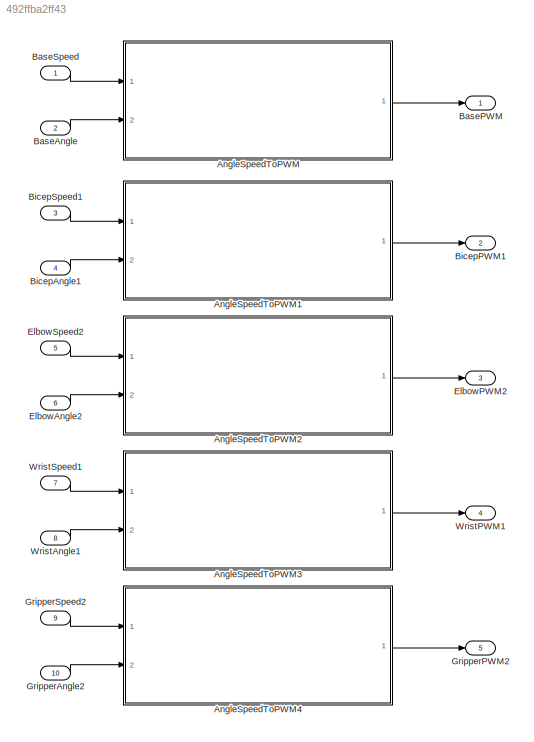
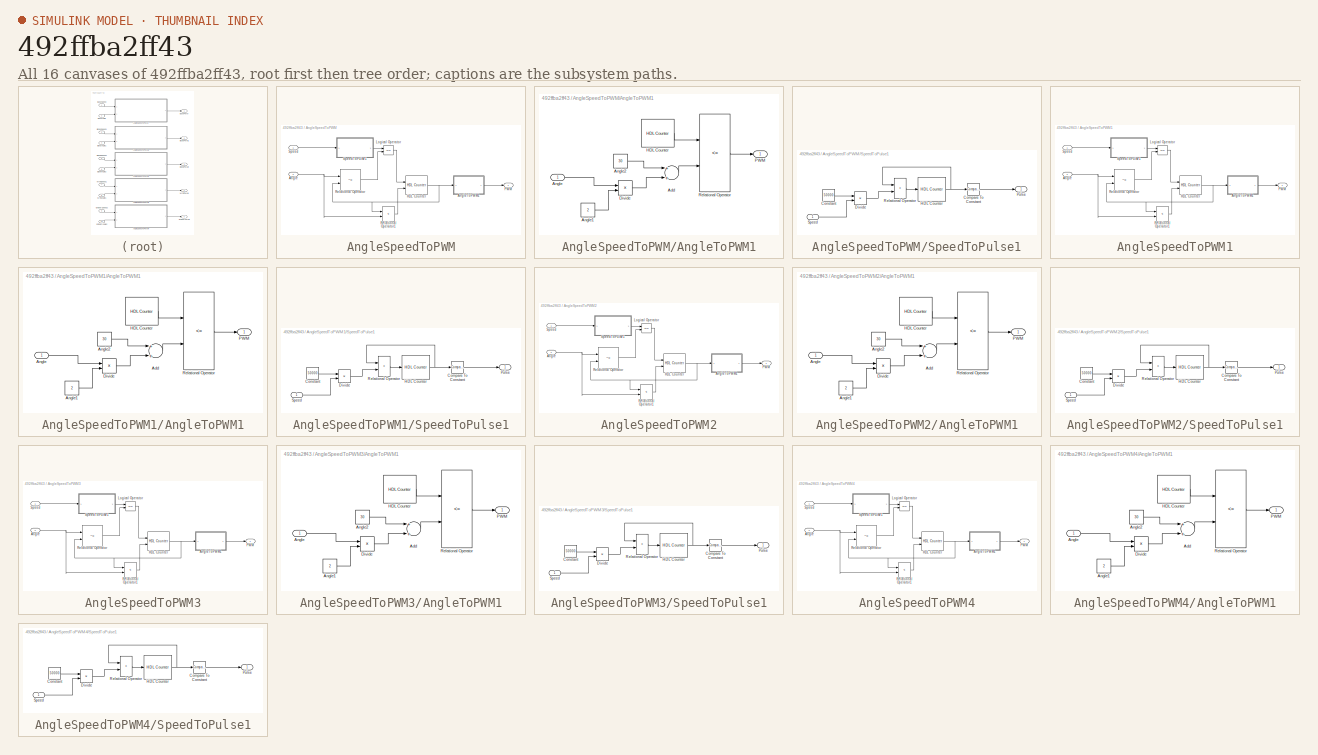
[diagram: thumbnail index - all 16 canvases of the model, root first then tree order]
MODEL slx_492ffba2ff43
KIND model
CONFIG AbsTol = auto
CONFIG EnableMultiTasking = off
CONFIG FixedStep = 1
CONFIG MaxStep = auto
CONFIG MinStep = auto
CONFIG RelTol = 1e-3
CONFIG SampleTimeConstraint = Unconstrained
CONFIG Solver = FixedStepDiscrete
CONFIG SolverName = FixedStepDiscrete
CONFIG StartTime = 0.0
CONFIG StopTime = 50000
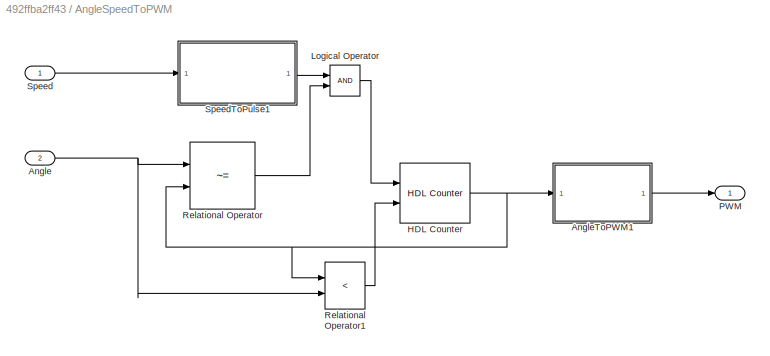
BLOCK [SubSystem] AngleSpeedToPWM
  Ports = [2, 1]
  RequestExecContextInheritance = off
  Variant = off
BLOCK [Inport] AngleSpeedToPWM/Angle
  IconDisplay = Port number
  Port = 2
BLOCK [SubSystem] AngleSpeedToPWM/AngleToPWM1
  Ports = [1, 1]
  RequestExecContextInheritance = off
  Variant = off
BLOCK [Sum] AngleSpeedToPWM/AngleToPWM1/Add
  InputSameDT = off
  OutDataTypeStr = Inherit: Inherit via internal rule
  Ports = [2, 1]
  SaturateOnIntegerOverflow = off
BLOCK [Inport] AngleSpeedToPWM/AngleToPWM1/Angle
  IconDisplay = Port number
BLOCK [Constant] AngleSpeedToPWM/AngleToPWM1/Angle1
  OutDataTypeStr = uint8
  Value = 2
BLOCK [Constant] AngleSpeedToPWM/AngleToPWM1/Angle2
  OutDataTypeStr = uint8
  Value = 30
BLOCK [Product] AngleSpeedToPWM/AngleToPWM1/Divide
  InputSameDT = off
  Inputs = */
  OutDataTypeStr = Inherit: Inherit via internal rule
  Ports = [2, 1]
  RndMeth = Floor
  SaturateOnIntegerOverflow = off
BLOCK [Reference] AngleSpeedToPWM/AngleToPWM1/HDL Counter  REF=hdlsllib/HDL Operations/HDL Counter
  Ports = [0, 1]
  SourceBlock = hdlsllib/HDL Operations/HDL Counter
  SourceProductBaseCode = HD
  SourceProductName = HDL Coder
  SourceType = HDL Counter
BLOCK [Outport] AngleSpeedToPWM/AngleToPWM1/PWM
  IconDisplay = Port number
BLOCK [RelationalOperator] AngleSpeedToPWM/AngleToPWM1/Relational Operator
  InputSameDT = off
  Operator = <=
  OutDataTypeStr = boolean
  Ports = [2, 1]
  RndMeth = Simplest
BLOCK [Reference] AngleSpeedToPWM/HDL Counter  REF=hdlsllib/HDL Operations/HDL Counter
  Ports = [2, 1]
  SourceBlock = hdlsllib/HDL Operations/HDL Counter
  SourceProductBaseCode = HD
  SourceProductName = HDL Coder
  SourceType = HDL Counter
BLOCK [Logic] AngleSpeedToPWM/Logical Operator
  AllPortsSameDT = off
  OutDataTypeStr = boolean
  Ports = [2, 1]
BLOCK [Outport] AngleSpeedToPWM/PWM
  IconDisplay = Port number
BLOCK [RelationalOperator] AngleSpeedToPWM/Relational Operator
  InputSameDT = off
  Operator = ~=
  OutDataTypeStr = boolean
  Ports = [2, 1]
  RndMeth = Simplest
BLOCK [RelationalOperator] AngleSpeedToPWM/Relational Operator1
  InputSameDT = off
  Operator = <
  OutDataTypeStr = boolean
  Ports = [2, 1]
  RndMeth = Simplest
BLOCK [Inport] AngleSpeedToPWM/Speed
  IconDisplay = Port number
BLOCK [SubSystem] AngleSpeedToPWM/SpeedToPulse1
  Ports = [1, 1]
  RequestExecContextInheritance = off
  Variant = off
BLOCK [Reference] AngleSpeedToPWM/SpeedToPulse1/Compare To Constant  REF=simulink/Logic and Bit
Operations/Compare
To Constant
  Ports = [1, 1]
  SourceBlock = simulink/Logic and Bit\nOperations/Compare\nTo Constant
  SourceProductBaseCode = SL
  SourceProductName = Simulink
  SourceType = Compare To Constant
BLOCK [Constant] AngleSpeedToPWM/SpeedToPulse1/Constant
  Value = 50000
BLOCK [Product] AngleSpeedToPWM/SpeedToPulse1/Divide
  InputSameDT = off
  Inputs = */
  OutDataTypeStr = Inherit: Inherit via internal rule
  Ports = [2, 1]
BLOCK [Reference] AngleSpeedToPWM/SpeedToPulse1/HDL Counter  REF=hdlsllib/HDL Operations/HDL Counter
  Ports = [1, 1]
  SourceBlock = hdlsllib/HDL Operations/HDL Counter
  SourceProductBaseCode = HD
  SourceProductName = HDL Coder
  SourceType = HDL Counter
BLOCK [Outport] AngleSpeedToPWM/SpeedToPulse1/Pulse
  IconDisplay = Port number
BLOCK [RelationalOperator] AngleSpeedToPWM/SpeedToPulse1/Relational Operator
  InputSameDT = off
  Operator = >
  OutDataTypeStr = boolean
  Ports = [2, 1]
BLOCK [Inport] AngleSpeedToPWM/SpeedToPulse1/Speed
  IconDisplay = Port number
  OutDataTypeStr = uint8
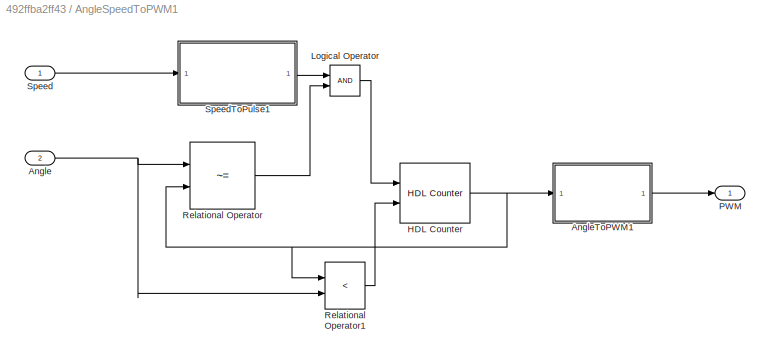
BLOCK [SubSystem] AngleSpeedToPWM1
  Ports = [2, 1]
  RequestExecContextInheritance = off
  Variant = off
BLOCK [Inport] AngleSpeedToPWM1/Angle
  IconDisplay = Port number
  Port = 2
BLOCK [SubSystem] AngleSpeedToPWM1/AngleToPWM1
  Ports = [1, 1]
  RequestExecContextInheritance = off
  Variant = off
BLOCK [Sum] AngleSpeedToPWM1/AngleToPWM1/Add
  InputSameDT = off
  OutDataTypeStr = Inherit: Inherit via internal rule
  Ports = [2, 1]
  SaturateOnIntegerOverflow = off
BLOCK [Inport] AngleSpeedToPWM1/AngleToPWM1/Angle
  IconDisplay = Port number
BLOCK [Constant] AngleSpeedToPWM1/AngleToPWM1/Angle1
  OutDataTypeStr = uint8
  Value = 2
BLOCK [Constant] AngleSpeedToPWM1/AngleToPWM1/Angle2
  OutDataTypeStr = uint8
  Value = 30
BLOCK [Product] AngleSpeedToPWM1/AngleToPWM1/Divide
  InputSameDT = off
  Inputs = */
  OutDataTypeStr = Inherit: Inherit via internal rule
  Ports = [2, 1]
  RndMeth = Floor
  SaturateOnIntegerOverflow = off
BLOCK [Reference] AngleSpeedToPWM1/AngleToPWM1/HDL Counter  REF=hdlsllib/HDL Operations/HDL Counter
  Ports = [0, 1]
  SourceBlock = hdlsllib/HDL Operations/HDL Counter
  SourceProductBaseCode = HD
  SourceProductName = HDL Coder
  SourceType = HDL Counter
BLOCK [Outport] AngleSpeedToPWM1/AngleToPWM1/PWM
  IconDisplay = Port number
BLOCK [RelationalOperator] AngleSpeedToPWM1/AngleToPWM1/Relational Operator
  InputSameDT = off
  Operator = <=
  OutDataTypeStr = boolean
  Ports = [2, 1]
  RndMeth = Simplest
BLOCK [Reference] AngleSpeedToPWM1/HDL Counter  REF=hdlsllib/HDL Operations/HDL Counter
  Ports = [2, 1]
  SourceBlock = hdlsllib/HDL Operations/HDL Counter
  SourceProductBaseCode = HD
  SourceProductName = HDL Coder
  SourceType = HDL Counter
BLOCK [Logic] AngleSpeedToPWM1/Logical Operator
  AllPortsSameDT = off
  OutDataTypeStr = boolean
  Ports = [2, 1]
BLOCK [Outport] AngleSpeedToPWM1/PWM
  IconDisplay = Port number
BLOCK [RelationalOperator] AngleSpeedToPWM1/Relational Operator
  InputSameDT = off
  Operator = ~=
  OutDataTypeStr = boolean
  Ports = [2, 1]
  RndMeth = Simplest
BLOCK [RelationalOperator] AngleSpeedToPWM1/Relational Operator1
  InputSameDT = off
  Operator = <
  OutDataTypeStr = boolean
  Ports = [2, 1]
  RndMeth = Simplest
BLOCK [Inport] AngleSpeedToPWM1/Speed
  IconDisplay = Port number
BLOCK [SubSystem] AngleSpeedToPWM1/SpeedToPulse1
  Ports = [1, 1]
  RequestExecContextInheritance = off
  Variant = off
BLOCK [Reference] AngleSpeedToPWM1/SpeedToPulse1/Compare To Constant  REF=simulink/Logic and Bit
Operations/Compare
To Constant
  Ports = [1, 1]
  SourceBlock = simulink/Logic and Bit\nOperations/Compare\nTo Constant
  SourceProductBaseCode = SL
  SourceProductName = Simulink
  SourceType = Compare To Constant
BLOCK [Constant] AngleSpeedToPWM1/SpeedToPulse1/Constant
  Value = 50000
BLOCK [Product] AngleSpeedToPWM1/SpeedToPulse1/Divide
  InputSameDT = off
  Inputs = */
  OutDataTypeStr = Inherit: Inherit via internal rule
  Ports = [2, 1]
BLOCK [Reference] AngleSpeedToPWM1/SpeedToPulse1/HDL Counter  REF=hdlsllib/HDL Operations/HDL Counter
  Ports = [1, 1]
  SourceBlock = hdlsllib/HDL Operations/HDL Counter
  SourceProductBaseCode = HD
  SourceProductName = HDL Coder
  SourceType = HDL Counter
BLOCK [Outport] AngleSpeedToPWM1/SpeedToPulse1/Pulse
  IconDisplay = Port number
BLOCK [RelationalOperator] AngleSpeedToPWM1/SpeedToPulse1/Relational Operator
  InputSameDT = off
  Operator = >
  OutDataTypeStr = boolean
  Ports = [2, 1]
BLOCK [Inport] AngleSpeedToPWM1/SpeedToPulse1/Speed
  IconDisplay = Port number
  OutDataTypeStr = uint8
BLOCK [SubSystem] AngleSpeedToPWM2
  Ports = [2, 1]
  RequestExecContextInheritance = off
  Variant = off
BLOCK [Inport] AngleSpeedToPWM2/Angle
  IconDisplay = Port number
  Port = 2
BLOCK [SubSystem] AngleSpeedToPWM2/AngleToPWM1
  Ports = [1, 1]
  RequestExecContextInheritance = off
  Variant = off
BLOCK [Sum] AngleSpeedToPWM2/AngleToPWM1/Add
  InputSameDT = off
  OutDataTypeStr = Inherit: Inherit via internal rule
  Ports = [2, 1]
  SaturateOnIntegerOverflow = off
BLOCK [Inport] AngleSpeedToPWM2/AngleToPWM1/Angle
  IconDisplay = Port number
BLOCK [Constant] AngleSpeedToPWM2/AngleToPWM1/Angle1
  OutDataTypeStr = uint8
  Value = 2
BLOCK [Constant] AngleSpeedToPWM2/AngleToPWM1/Angle2
  OutDataTypeStr = uint8
  Value = 30
BLOCK [Product] AngleSpeedToPWM2/AngleToPWM1/Divide
  InputSameDT = off
  Inputs = */
  OutDataTypeStr = Inherit: Inherit via internal rule
  Ports = [2, 1]
  RndMeth = Floor
  SaturateOnIntegerOverflow = off
BLOCK [Reference] AngleSpeedToPWM2/AngleToPWM1/HDL Counter  REF=hdlsllib/HDL Operations/HDL Counter
  Ports = [0, 1]
  SourceBlock = hdlsllib/HDL Operations/HDL Counter
  SourceProductBaseCode = HD
  SourceProductName = HDL Coder
  SourceType = HDL Counter
BLOCK [Outport] AngleSpeedToPWM2/AngleToPWM1/PWM
  IconDisplay = Port number
BLOCK [RelationalOperator] AngleSpeedToPWM2/AngleToPWM1/Relational Operator
  InputSameDT = off
  Operator = <=
  OutDataTypeStr = boolean
  Ports = [2, 1]
  RndMeth = Simplest
BLOCK [Reference] AngleSpeedToPWM2/HDL Counter  REF=hdlsllib/HDL Operations/HDL Counter
  Ports = [2, 1]
  SourceBlock = hdlsllib/HDL Operations/HDL Counter
  SourceProductBaseCode = HD
  SourceProductName = HDL Coder
  SourceType = HDL Counter
BLOCK [Logic] AngleSpeedToPWM2/Logical Operator
  AllPortsSameDT = off
  OutDataTypeStr = boolean
  Ports = [2, 1]
BLOCK [Outport] AngleSpeedToPWM2/PWM
  IconDisplay = Port number
BLOCK [RelationalOperator] AngleSpeedToPWM2/Relational Operator
  InputSameDT = off
  Operator = ~=
  OutDataTypeStr = boolean
  Ports = [2, 1]
  RndMeth = Simplest
BLOCK [RelationalOperator] AngleSpeedToPWM2/Relational Operator1
  InputSameDT = off
  Operator = <
  OutDataTypeStr = boolean
  Ports = [2, 1]
  RndMeth = Simplest
BLOCK [Inport] AngleSpeedToPWM2/Speed
  IconDisplay = Port number
BLOCK [SubSystem] AngleSpeedToPWM2/SpeedToPulse1
  Ports = [1, 1]
  RequestExecContextInheritance = off
  Variant = off
BLOCK [Reference] AngleSpeedToPWM2/SpeedToPulse1/Compare To Constant  REF=simulink/Logic and Bit
Operations/Compare
To Constant
  Ports = [1, 1]
  SourceBlock = simulink/Logic and Bit\nOperations/Compare\nTo Constant
  SourceProductBaseCode = SL
  SourceProductName = Simulink
  SourceType = Compare To Constant
BLOCK [Constant] AngleSpeedToPWM2/SpeedToPulse1/Constant
  Value = 50000
BLOCK [Product] AngleSpeedToPWM2/SpeedToPulse1/Divide
  InputSameDT = off
  Inputs = */
  OutDataTypeStr = Inherit: Inherit via internal rule
  Ports = [2, 1]
BLOCK [Reference] AngleSpeedToPWM2/SpeedToPulse1/HDL Counter  REF=hdlsllib/HDL Operations/HDL Counter
  Ports = [1, 1]
  SourceBlock = hdlsllib/HDL Operations/HDL Counter
  SourceProductBaseCode = HD
  SourceProductName = HDL Coder
  SourceType = HDL Counter
BLOCK [Outport] AngleSpeedToPWM2/SpeedToPulse1/Pulse
  IconDisplay = Port number
BLOCK [RelationalOperator] AngleSpeedToPWM2/SpeedToPulse1/Relational Operator
  InputSameDT = off
  Operator = >
  OutDataTypeStr = boolean
  Ports = [2, 1]
BLOCK [Inport] AngleSpeedToPWM2/SpeedToPulse1/Speed
  IconDisplay = Port number
  OutDataTypeStr = uint8
BLOCK [SubSystem] AngleSpeedToPWM3
  Ports = [2, 1]
  RequestExecContextInheritance = off
  Variant = off
BLOCK [Inport] AngleSpeedToPWM3/Angle
  IconDisplay = Port number
  Port = 2
BLOCK [SubSystem] AngleSpeedToPWM3/AngleToPWM1
  Ports = [1, 1]
  RequestExecContextInheritance = off
  Variant = off
BLOCK [Sum] AngleSpeedToPWM3/AngleToPWM1/Add
  InputSameDT = off
  OutDataTypeStr = Inherit: Inherit via internal rule
  Ports = [2, 1]
  SaturateOnIntegerOverflow = off
BLOCK [Inport] AngleSpeedToPWM3/AngleToPWM1/Angle
  IconDisplay = Port number
BLOCK [Constant] AngleSpeedToPWM3/AngleToPWM1/Angle1
  OutDataTypeStr = uint8
  Value = 2
BLOCK [Constant] AngleSpeedToPWM3/AngleToPWM1/Angle2
  OutDataTypeStr = uint8
  Value = 30
BLOCK [Product] AngleSpeedToPWM3/AngleToPWM1/Divide
  InputSameDT = off
  Inputs = */
  OutDataTypeStr = Inherit: Inherit via internal rule
  Ports = [2, 1]
  RndMeth = Floor
  SaturateOnIntegerOverflow = off
BLOCK [Reference] AngleSpeedToPWM3/AngleToPWM1/HDL Counter  REF=hdlsllib/HDL Operations/HDL Counter
  Ports = [0, 1]
  SourceBlock = hdlsllib/HDL Operations/HDL Counter
  SourceProductBaseCode = HD
  SourceProductName = HDL Coder
  SourceType = HDL Counter
BLOCK [Outport] AngleSpeedToPWM3/AngleToPWM1/PWM
  IconDisplay = Port number
BLOCK [RelationalOperator] AngleSpeedToPWM3/AngleToPWM1/Relational Operator
  InputSameDT = off
  Operator = <=
  OutDataTypeStr = boolean
  Ports = [2, 1]
  RndMeth = Simplest
BLOCK [Reference] AngleSpeedToPWM3/HDL Counter  REF=hdlsllib/HDL Operations/HDL Counter
  Ports = [2, 1]
  SourceBlock = hdlsllib/HDL Operations/HDL Counter
  SourceProductBaseCode = HD
  SourceProductName = HDL Coder
  SourceType = HDL Counter
BLOCK [Logic] AngleSpeedToPWM3/Logical Operator
  AllPortsSameDT = off
  OutDataTypeStr = boolean
  Ports = [2, 1]
BLOCK [Outport] AngleSpeedToPWM3/PWM
  IconDisplay = Port number
BLOCK [RelationalOperator] AngleSpeedToPWM3/Relational Operator
  InputSameDT = off
  Operator = ~=
  OutDataTypeStr = boolean
  Ports = [2, 1]
  RndMeth = Simplest
BLOCK [RelationalOperator] AngleSpeedToPWM3/Relational Operator1
  InputSameDT = off
  Operator = <
  OutDataTypeStr = boolean
  Ports = [2, 1]
  RndMeth = Simplest
BLOCK [Inport] AngleSpeedToPWM3/Speed
  IconDisplay = Port number
BLOCK [SubSystem] AngleSpeedToPWM3/SpeedToPulse1
  Ports = [1, 1]
  RequestExecContextInheritance = off
  Variant = off
BLOCK [Reference] AngleSpeedToPWM3/SpeedToPulse1/Compare To Constant  REF=simulink/Logic and Bit
Operations/Compare
To Constant
  Ports = [1, 1]
  SourceBlock = simulink/Logic and Bit\nOperations/Compare\nTo Constant
  SourceProductBaseCode = SL
  SourceProductName = Simulink
  SourceType = Compare To Constant
BLOCK [Constant] AngleSpeedToPWM3/SpeedToPulse1/Constant
  Value = 50000
BLOCK [Product] AngleSpeedToPWM3/SpeedToPulse1/Divide
  InputSameDT = off
  Inputs = */
  OutDataTypeStr = Inherit: Inherit via internal rule
  Ports = [2, 1]
BLOCK [Reference] AngleSpeedToPWM3/SpeedToPulse1/HDL Counter  REF=hdlsllib/HDL Operations/HDL Counter
  Ports = [1, 1]
  SourceBlock = hdlsllib/HDL Operations/HDL Counter
  SourceProductBaseCode = HD
  SourceProductName = HDL Coder
  SourceType = HDL Counter
BLOCK [Outport] AngleSpeedToPWM3/SpeedToPulse1/Pulse
  IconDisplay = Port number
BLOCK [RelationalOperator] AngleSpeedToPWM3/SpeedToPulse1/Relational Operator
  InputSameDT = off
  Operator = >
  OutDataTypeStr = boolean
  Ports = [2, 1]
BLOCK [Inport] AngleSpeedToPWM3/SpeedToPulse1/Speed
  IconDisplay = Port number
  OutDataTypeStr = uint8
BLOCK [SubSystem] AngleSpeedToPWM4
  Ports = [2, 1]
  RequestExecContextInheritance = off
  Variant = off
BLOCK [Inport] AngleSpeedToPWM4/Angle
  IconDisplay = Port number
  Port = 2
BLOCK [SubSystem] AngleSpeedToPWM4/AngleToPWM1
  Ports = [1, 1]
  RequestExecContextInheritance = off
  Variant = off
BLOCK [Sum] AngleSpeedToPWM4/AngleToPWM1/Add
  InputSameDT = off
  OutDataTypeStr = Inherit: Inherit via internal rule
  Ports = [2, 1]
  SaturateOnIntegerOverflow = off
BLOCK [Inport] AngleSpeedToPWM4/AngleToPWM1/Angle
  IconDisplay = Port number
BLOCK [Constant] AngleSpeedToPWM4/AngleToPWM1/Angle1
  OutDataTypeStr = uint8
  Value = 2
BLOCK [Constant] AngleSpeedToPWM4/AngleToPWM1/Angle2
  OutDataTypeStr = uint8
  Value = 30
BLOCK [Product] AngleSpeedToPWM4/AngleToPWM1/Divide
  InputSameDT = off
  Inputs = */
  OutDataTypeStr = Inherit: Inherit via internal rule
  Ports = [2, 1]
  RndMeth = Floor
  SaturateOnIntegerOverflow = off
BLOCK [Reference] AngleSpeedToPWM4/AngleToPWM1/HDL Counter  REF=hdlsllib/HDL Operations/HDL Counter
  Ports = [0, 1]
  SourceBlock = hdlsllib/HDL Operations/HDL Counter
  SourceProductBaseCode = HD
  SourceProductName = HDL Coder
  SourceType = HDL Counter
BLOCK [Outport] AngleSpeedToPWM4/AngleToPWM1/PWM
  IconDisplay = Port number
BLOCK [RelationalOperator] AngleSpeedToPWM4/AngleToPWM1/Relational Operator
  InputSameDT = off
  Operator = <=
  OutDataTypeStr = boolean
  Ports = [2, 1]
  RndMeth = Simplest
BLOCK [Reference] AngleSpeedToPWM4/HDL Counter  REF=hdlsllib/HDL Operations/HDL Counter
  Ports = [2, 1]
  SourceBlock = hdlsllib/HDL Operations/HDL Counter
  SourceProductBaseCode = HD
  SourceProductName = HDL Coder
  SourceType = HDL Counter
BLOCK [Logic] AngleSpeedToPWM4/Logical Operator
  AllPortsSameDT = off
  OutDataTypeStr = boolean
  Ports = [2, 1]
BLOCK [Outport] AngleSpeedToPWM4/PWM
  IconDisplay = Port number
BLOCK [RelationalOperator] AngleSpeedToPWM4/Relational Operator
  InputSameDT = off
  Operator = ~=
  OutDataTypeStr = boolean
  Ports = [2, 1]
  RndMeth = Simplest
BLOCK [RelationalOperator] AngleSpeedToPWM4/Relational Operator1
  InputSameDT = off
  Operator = <
  OutDataTypeStr = boolean
  Ports = [2, 1]
  RndMeth = Simplest
BLOCK [Inport] AngleSpeedToPWM4/Speed
  IconDisplay = Port number
BLOCK [SubSystem] AngleSpeedToPWM4/SpeedToPulse1
  Ports = [1, 1]
  RequestExecContextInheritance = off
  Variant = off
BLOCK [Reference] AngleSpeedToPWM4/SpeedToPulse1/Compare To Constant  REF=simulink/Logic and Bit
Operations/Compare
To Constant
  Ports = [1, 1]
  SourceBlock = simulink/Logic and Bit\nOperations/Compare\nTo Constant
  SourceProductBaseCode = SL
  SourceProductName = Simulink
  SourceType = Compare To Constant
BLOCK [Constant] AngleSpeedToPWM4/SpeedToPulse1/Constant
  Value = 50000
BLOCK [Product] AngleSpeedToPWM4/SpeedToPulse1/Divide
  InputSameDT = off
  Inputs = */
  OutDataTypeStr = Inherit: Inherit via internal rule
  Ports = [2, 1]
BLOCK [Reference] AngleSpeedToPWM4/SpeedToPulse1/HDL Counter  REF=hdlsllib/HDL Operations/HDL Counter
  Ports = [1, 1]
  SourceBlock = hdlsllib/HDL Operations/HDL Counter
  SourceProductBaseCode = HD
  SourceProductName = HDL Coder
  SourceType = HDL Counter
BLOCK [Outport] AngleSpeedToPWM4/SpeedToPulse1/Pulse
  IconDisplay = Port number
BLOCK [RelationalOperator] AngleSpeedToPWM4/SpeedToPulse1/Relational Operator
  InputSameDT = off
  Operator = >
  OutDataTypeStr = boolean
  Ports = [2, 1]
BLOCK [Inport] AngleSpeedToPWM4/SpeedToPulse1/Speed
  IconDisplay = Port number
  OutDataTypeStr = uint8
BLOCK [Inport] BaseAngle
  IconDisplay = Port number
  Port = 2
BLOCK [Outport] BasePWM
  IconDisplay = Port number
BLOCK [Inport] BaseSpeed
  IconDisplay = Port number
BLOCK [Inport] BicepAngle1
  IconDisplay = Port number
  Port = 4
BLOCK [Outport] BicepPWM1
  IconDisplay = Port number
  Port = 2
BLOCK [Inport] BicepSpeed1
  IconDisplay = Port number
  Port = 3
BLOCK [Inport] ElbowAngle2
  IconDisplay = Port number
  Port = 6
BLOCK [Outport] ElbowPWM2
  IconDisplay = Port number
  Port = 3
BLOCK [Inport] ElbowSpeed2
  IconDisplay = Port number
  Port = 5
BLOCK [Inport] GripperAngle2
  IconDisplay = Port number
  Port = 10
BLOCK [Outport] GripperPWM2
  IconDisplay = Port number
  Port = 5
BLOCK [Inport] GripperSpeed2
  IconDisplay = Port number
  Port = 9
BLOCK [Inport] WristAngle1
  IconDisplay = Port number
  Port = 8
BLOCK [Outport] WristPWM1
  IconDisplay = Port number
  Port = 4
BLOCK [Inport] WristSpeed1
  IconDisplay = Port number
  Port = 7
NET AngleSpeedToPWM/Angle:1 -> AngleSpeedToPWM/Relational Operator1:2, AngleSpeedToPWM/Relational Operator:1
LINE AngleSpeedToPWM/AngleToPWM1/Add:1 -> AngleSpeedToPWM/AngleToPWM1/Relational Operator:2
LINE AngleSpeedToPWM/AngleToPWM1/Angle1:1 -> AngleSpeedToPWM/AngleToPWM1/Divide:2
LINE AngleSpeedToPWM/AngleToPWM1/Angle2:1 -> AngleSpeedToPWM/AngleToPWM1/Add:1
LINE AngleSpeedToPWM/AngleToPWM1/Angle:1 -> AngleSpeedToPWM/AngleToPWM1/Divide:1
LINE AngleSpeedToPWM/AngleToPWM1/Divide:1 -> AngleSpeedToPWM/AngleToPWM1/Add:2
LINE AngleSpeedToPWM/AngleToPWM1/HDL Counter:1 -> AngleSpeedToPWM/AngleToPWM1/Relational Operator:1
LINE AngleSpeedToPWM/AngleToPWM1/Relational Operator:1 -> AngleSpeedToPWM/AngleToPWM1/PWM:1
LINE AngleSpeedToPWM/AngleToPWM1:1 -> AngleSpeedToPWM/PWM:1
NET AngleSpeedToPWM/HDL Counter:1 -> AngleSpeedToPWM/AngleToPWM1:1, AngleSpeedToPWM/Relational Operator1:1, AngleSpeedToPWM/Relational Operator:2
LINE AngleSpeedToPWM/Logical Operator:1 -> AngleSpeedToPWM/HDL Counter:1
LINE AngleSpeedToPWM/Relational Operator1:1 -> AngleSpeedToPWM/HDL Counter:2
LINE AngleSpeedToPWM/Relational Operator:1 -> AngleSpeedToPWM/Logical Operator:2
LINE AngleSpeedToPWM/Speed:1 -> AngleSpeedToPWM/SpeedToPulse1:1
LINE AngleSpeedToPWM/SpeedToPulse1/Compare To Constant:1 -> AngleSpeedToPWM/SpeedToPulse1/Pulse:1
LINE AngleSpeedToPWM/SpeedToPulse1/Constant:1 -> AngleSpeedToPWM/SpeedToPulse1/Divide:1
LINE AngleSpeedToPWM/SpeedToPulse1/Divide:1 -> AngleSpeedToPWM/SpeedToPulse1/Relational Operator:2
NET AngleSpeedToPWM/SpeedToPulse1/HDL Counter:1 -> AngleSpeedToPWM/SpeedToPulse1/Compare To Constant:1, AngleSpeedToPWM/SpeedToPulse1/Relational Operator:1
LINE AngleSpeedToPWM/SpeedToPulse1/Relational Operator:1 -> AngleSpeedToPWM/SpeedToPulse1/HDL Counter:1
LINE AngleSpeedToPWM/SpeedToPulse1/Speed:1 -> AngleSpeedToPWM/SpeedToPulse1/Divide:2
LINE AngleSpeedToPWM/SpeedToPulse1:1 -> AngleSpeedToPWM/Logical Operator:1
NET AngleSpeedToPWM1/Angle:1 -> AngleSpeedToPWM1/Relational Operator1:2, AngleSpeedToPWM1/Relational Operator:1
LINE AngleSpeedToPWM1/AngleToPWM1/Add:1 -> AngleSpeedToPWM1/AngleToPWM1/Relational Operator:2
LINE AngleSpeedToPWM1/AngleToPWM1/Angle1:1 -> AngleSpeedToPWM1/AngleToPWM1/Divide:2
LINE AngleSpeedToPWM1/AngleToPWM1/Angle2:1 -> AngleSpeedToPWM1/AngleToPWM1/Add:1
LINE AngleSpeedToPWM1/AngleToPWM1/Angle:1 -> AngleSpeedToPWM1/AngleToPWM1/Divide:1
LINE AngleSpeedToPWM1/AngleToPWM1/Divide:1 -> AngleSpeedToPWM1/AngleToPWM1/Add:2
LINE AngleSpeedToPWM1/AngleToPWM1/HDL Counter:1 -> AngleSpeedToPWM1/AngleToPWM1/Relational Operator:1
LINE AngleSpeedToPWM1/AngleToPWM1/Relational Operator:1 -> AngleSpeedToPWM1/AngleToPWM1/PWM:1
LINE AngleSpeedToPWM1/AngleToPWM1:1 -> AngleSpeedToPWM1/PWM:1
NET AngleSpeedToPWM1/HDL Counter:1 -> AngleSpeedToPWM1/AngleToPWM1:1, AngleSpeedToPWM1/Relational Operator1:1, AngleSpeedToPWM1/Relational Operator:2
LINE AngleSpeedToPWM1/Logical Operator:1 -> AngleSpeedToPWM1/HDL Counter:1
LINE AngleSpeedToPWM1/Relational Operator1:1 -> AngleSpeedToPWM1/HDL Counter:2
LINE AngleSpeedToPWM1/Relational Operator:1 -> AngleSpeedToPWM1/Logical Operator:2
LINE AngleSpeedToPWM1/Speed:1 -> AngleSpeedToPWM1/SpeedToPulse1:1
LINE AngleSpeedToPWM1/SpeedToPulse1/Compare To Constant:1 -> AngleSpeedToPWM1/SpeedToPulse1/Pulse:1
LINE AngleSpeedToPWM1/SpeedToPulse1/Constant:1 -> AngleSpeedToPWM1/SpeedToPulse1/Divide:1
LINE AngleSpeedToPWM1/SpeedToPulse1/Divide:1 -> AngleSpeedToPWM1/SpeedToPulse1/Relational Operator:2
NET AngleSpeedToPWM1/SpeedToPulse1/HDL Counter:1 -> AngleSpeedToPWM1/SpeedToPulse1/Compare To Constant:1, AngleSpeedToPWM1/SpeedToPulse1/Relational Operator:1
LINE AngleSpeedToPWM1/SpeedToPulse1/Relational Operator:1 -> AngleSpeedToPWM1/SpeedToPulse1/HDL Counter:1
LINE AngleSpeedToPWM1/SpeedToPulse1/Speed:1 -> AngleSpeedToPWM1/SpeedToPulse1/Divide:2
LINE AngleSpeedToPWM1/SpeedToPulse1:1 -> AngleSpeedToPWM1/Logical Operator:1
LINE AngleSpeedToPWM1:1 -> BicepPWM1:1
NET AngleSpeedToPWM2/Angle:1 -> AngleSpeedToPWM2/Relational Operator1:2, AngleSpeedToPWM2/Relational Operator:1
LINE AngleSpeedToPWM2/AngleToPWM1/Add:1 -> AngleSpeedToPWM2/AngleToPWM1/Relational Operator:2
LINE AngleSpeedToPWM2/AngleToPWM1/Angle1:1 -> AngleSpeedToPWM2/AngleToPWM1/Divide:2
LINE AngleSpeedToPWM2/AngleToPWM1/Angle2:1 -> AngleSpeedToPWM2/AngleToPWM1/Add:1
LINE AngleSpeedToPWM2/AngleToPWM1/Angle:1 -> AngleSpeedToPWM2/AngleToPWM1/Divide:1
LINE AngleSpeedToPWM2/AngleToPWM1/Divide:1 -> AngleSpeedToPWM2/AngleToPWM1/Add:2
LINE AngleSpeedToPWM2/AngleToPWM1/HDL Counter:1 -> AngleSpeedToPWM2/AngleToPWM1/Relational Operator:1
LINE AngleSpeedToPWM2/AngleToPWM1/Relational Operator:1 -> AngleSpeedToPWM2/AngleToPWM1/PWM:1
LINE AngleSpeedToPWM2/AngleToPWM1:1 -> AngleSpeedToPWM2/PWM:1
NET AngleSpeedToPWM2/HDL Counter:1 -> AngleSpeedToPWM2/AngleToPWM1:1, AngleSpeedToPWM2/Relational Operator1:1, AngleSpeedToPWM2/Relational Operator:2
LINE AngleSpeedToPWM2/Logical Operator:1 -> AngleSpeedToPWM2/HDL Counter:1
LINE AngleSpeedToPWM2/Relational Operator1:1 -> AngleSpeedToPWM2/HDL Counter:2
LINE AngleSpeedToPWM2/Relational Operator:1 -> AngleSpeedToPWM2/Logical Operator:2
LINE AngleSpeedToPWM2/Speed:1 -> AngleSpeedToPWM2/SpeedToPulse1:1
LINE AngleSpeedToPWM2/SpeedToPulse1/Compare To Constant:1 -> AngleSpeedToPWM2/SpeedToPulse1/Pulse:1
LINE AngleSpeedToPWM2/SpeedToPulse1/Constant:1 -> AngleSpeedToPWM2/SpeedToPulse1/Divide:1
LINE AngleSpeedToPWM2/SpeedToPulse1/Divide:1 -> AngleSpeedToPWM2/SpeedToPulse1/Relational Operator:2
NET AngleSpeedToPWM2/SpeedToPulse1/HDL Counter:1 -> AngleSpeedToPWM2/SpeedToPulse1/Compare To Constant:1, AngleSpeedToPWM2/SpeedToPulse1/Relational Operator:1
LINE AngleSpeedToPWM2/SpeedToPulse1/Relational Operator:1 -> AngleSpeedToPWM2/SpeedToPulse1/HDL Counter:1
LINE AngleSpeedToPWM2/SpeedToPulse1/Speed:1 -> AngleSpeedToPWM2/SpeedToPulse1/Divide:2
LINE AngleSpeedToPWM2/SpeedToPulse1:1 -> AngleSpeedToPWM2/Logical Operator:1
LINE AngleSpeedToPWM2:1 -> ElbowPWM2:1
NET AngleSpeedToPWM3/Angle:1 -> AngleSpeedToPWM3/Relational Operator1:2, AngleSpeedToPWM3/Relational Operator:1
LINE AngleSpeedToPWM3/AngleToPWM1/Add:1 -> AngleSpeedToPWM3/AngleToPWM1/Relational Operator:2
LINE AngleSpeedToPWM3/AngleToPWM1/Angle1:1 -> AngleSpeedToPWM3/AngleToPWM1/Divide:2
LINE AngleSpeedToPWM3/AngleToPWM1/Angle2:1 -> AngleSpeedToPWM3/AngleToPWM1/Add:1
LINE AngleSpeedToPWM3/AngleToPWM1/Angle:1 -> AngleSpeedToPWM3/AngleToPWM1/Divide:1
LINE AngleSpeedToPWM3/AngleToPWM1/Divide:1 -> AngleSpeedToPWM3/AngleToPWM1/Add:2
LINE AngleSpeedToPWM3/AngleToPWM1/HDL Counter:1 -> AngleSpeedToPWM3/AngleToPWM1/Relational Operator:1
LINE AngleSpeedToPWM3/AngleToPWM1/Relational Operator:1 -> AngleSpeedToPWM3/AngleToPWM1/PWM:1
LINE AngleSpeedToPWM3/AngleToPWM1:1 -> AngleSpeedToPWM3/PWM:1
NET AngleSpeedToPWM3/HDL Counter:1 -> AngleSpeedToPWM3/AngleToPWM1:1, AngleSpeedToPWM3/Relational Operator1:1, AngleSpeedToPWM3/Relational Operator:2
LINE AngleSpeedToPWM3/Logical Operator:1 -> AngleSpeedToPWM3/HDL Counter:1
LINE AngleSpeedToPWM3/Relational Operator1:1 -> AngleSpeedToPWM3/HDL Counter:2
LINE AngleSpeedToPWM3/Relational Operator:1 -> AngleSpeedToPWM3/Logical Operator:2
LINE AngleSpeedToPWM3/Speed:1 -> AngleSpeedToPWM3/SpeedToPulse1:1
LINE AngleSpeedToPWM3/SpeedToPulse1/Compare To Constant:1 -> AngleSpeedToPWM3/SpeedToPulse1/Pulse:1
LINE AngleSpeedToPWM3/SpeedToPulse1/Constant:1 -> AngleSpeedToPWM3/SpeedToPulse1/Divide:1
LINE AngleSpeedToPWM3/SpeedToPulse1/Divide:1 -> AngleSpeedToPWM3/SpeedToPulse1/Relational Operator:2
NET AngleSpeedToPWM3/SpeedToPulse1/HDL Counter:1 -> AngleSpeedToPWM3/SpeedToPulse1/Compare To Constant:1, AngleSpeedToPWM3/SpeedToPulse1/Relational Operator:1
LINE AngleSpeedToPWM3/SpeedToPulse1/Relational Operator:1 -> AngleSpeedToPWM3/SpeedToPulse1/HDL Counter:1
LINE AngleSpeedToPWM3/SpeedToPulse1/Speed:1 -> AngleSpeedToPWM3/SpeedToPulse1/Divide:2
LINE AngleSpeedToPWM3/SpeedToPulse1:1 -> AngleSpeedToPWM3/Logical Operator:1
LINE AngleSpeedToPWM3:1 -> WristPWM1:1
NET AngleSpeedToPWM4/Angle:1 -> AngleSpeedToPWM4/Relational Operator1:2, AngleSpeedToPWM4/Relational Operator:1
LINE AngleSpeedToPWM4/AngleToPWM1/Add:1 -> AngleSpeedToPWM4/AngleToPWM1/Relational Operator:2
LINE AngleSpeedToPWM4/AngleToPWM1/Angle1:1 -> AngleSpeedToPWM4/AngleToPWM1/Divide:2
LINE AngleSpeedToPWM4/AngleToPWM1/Angle2:1 -> AngleSpeedToPWM4/AngleToPWM1/Add:1
LINE AngleSpeedToPWM4/AngleToPWM1/Angle:1 -> AngleSpeedToPWM4/AngleToPWM1/Divide:1
LINE AngleSpeedToPWM4/AngleToPWM1/Divide:1 -> AngleSpeedToPWM4/AngleToPWM1/Add:2
LINE AngleSpeedToPWM4/AngleToPWM1/HDL Counter:1 -> AngleSpeedToPWM4/AngleToPWM1/Relational Operator:1
LINE AngleSpeedToPWM4/AngleToPWM1/Relational Operator:1 -> AngleSpeedToPWM4/AngleToPWM1/PWM:1
LINE AngleSpeedToPWM4/AngleToPWM1:1 -> AngleSpeedToPWM4/PWM:1
NET AngleSpeedToPWM4/HDL Counter:1 -> AngleSpeedToPWM4/AngleToPWM1:1, AngleSpeedToPWM4/Relational Operator1:1, AngleSpeedToPWM4/Relational Operator:2
LINE AngleSpeedToPWM4/Logical Operator:1 -> AngleSpeedToPWM4/HDL Counter:1
LINE AngleSpeedToPWM4/Relational Operator1:1 -> AngleSpeedToPWM4/HDL Counter:2
LINE AngleSpeedToPWM4/Relational Operator:1 -> AngleSpeedToPWM4/Logical Operator:2
LINE AngleSpeedToPWM4/Speed:1 -> AngleSpeedToPWM4/SpeedToPulse1:1
LINE AngleSpeedToPWM4/SpeedToPulse1/Compare To Constant:1 -> AngleSpeedToPWM4/SpeedToPulse1/Pulse:1
LINE AngleSpeedToPWM4/SpeedToPulse1/Constant:1 -> AngleSpeedToPWM4/SpeedToPulse1/Divide:1
LINE AngleSpeedToPWM4/SpeedToPulse1/Divide:1 -> AngleSpeedToPWM4/SpeedToPulse1/Relational Operator:2
NET AngleSpeedToPWM4/SpeedToPulse1/HDL Counter:1 -> AngleSpeedToPWM4/SpeedToPulse1/Compare To Constant:1, AngleSpeedToPWM4/SpeedToPulse1/Relational Operator:1
LINE AngleSpeedToPWM4/SpeedToPulse1/Relational Operator:1 -> AngleSpeedToPWM4/SpeedToPulse1/HDL Counter:1
LINE AngleSpeedToPWM4/SpeedToPulse1/Speed:1 -> AngleSpeedToPWM4/SpeedToPulse1/Divide:2
LINE AngleSpeedToPWM4/SpeedToPulse1:1 -> AngleSpeedToPWM4/Logical Operator:1
LINE AngleSpeedToPWM4:1 -> GripperPWM2:1
LINE AngleSpeedToPWM:1 -> BasePWM:1
LINE BaseAngle:1 -> AngleSpeedToPWM:2
LINE BaseSpeed:1 -> AngleSpeedToPWM:1
LINE BicepAngle1:1 -> AngleSpeedToPWM1:2
LINE BicepSpeed1:1 -> AngleSpeedToPWM1:1
LINE ElbowAngle2:1 -> AngleSpeedToPWM2:2
LINE ElbowSpeed2:1 -> AngleSpeedToPWM2:1
LINE GripperAngle2:1 -> AngleSpeedToPWM4:2
LINE GripperSpeed2:1 -> AngleSpeedToPWM4:1
LINE WristAngle1:1 -> AngleSpeedToPWM3:2
LINE WristSpeed1:1 -> AngleSpeedToPWM3:1
note: NET lines group one-source signal fan-out (src -> all destinations, sorted); 1:1 wires keep LINE
